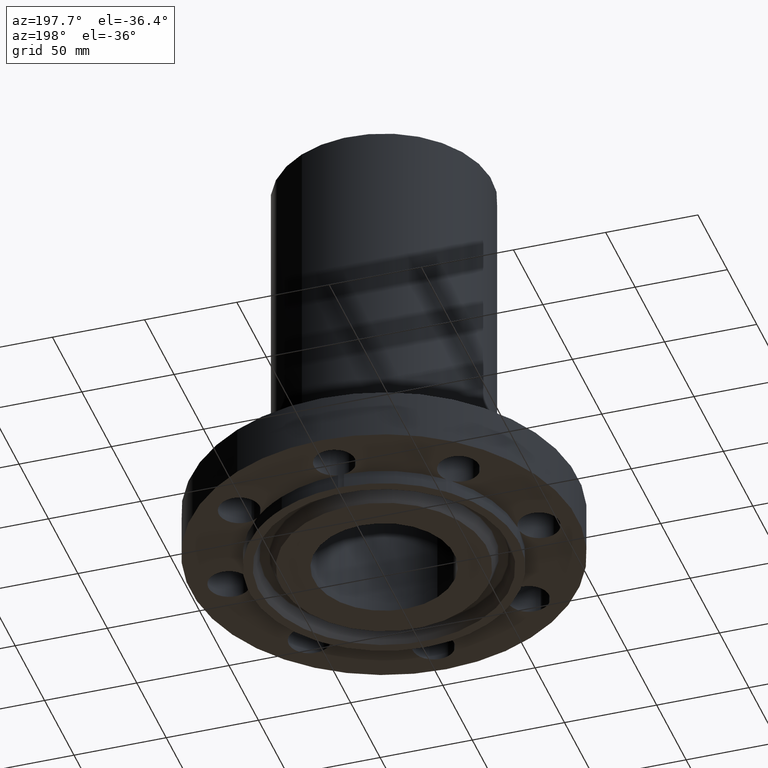
[diagram: clean part render]
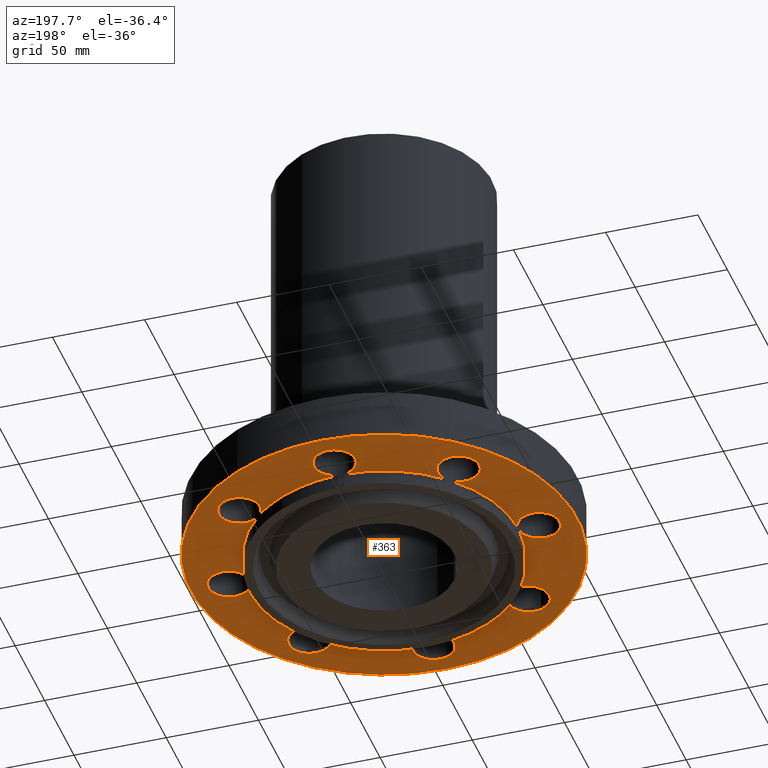
[diagram: same view with one face highlighted and labeled with its STEP entity id]
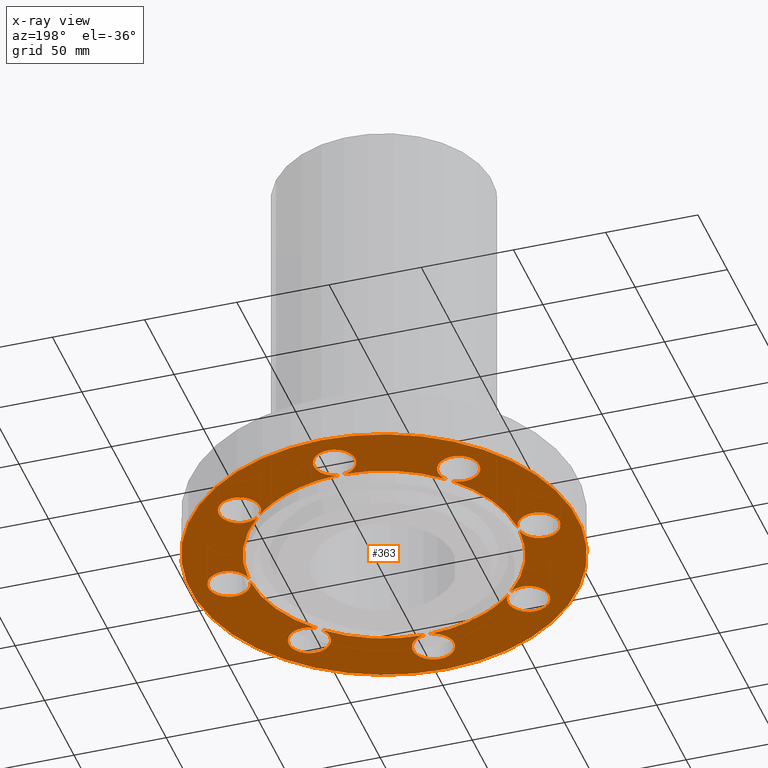
[diagram: x-ray of the same camera — body ghosted, the highlighted face saturated]
A machine part, auxiliary view. The second image highlights one B-rep face of the part: STEP entity #363.
The next image is the same camera in x-ray: the body ghosted, the highlighted face saturated — about 0% of this face is hidden behind the body in this view.
In plain terms, the highlighted planar face has unit normal (0, 0, -1).
Its self-contained STEP definition (entity closure, byte-faithful):
#65=AXIS2_PLACEMENT_3D('Circle Axis2P3D',#63,#64,$) ;
#78=AXIS2_PLACEMENT_3D('Plane Axis2P3D',#75,#76,#77) ;
#82=AXIS2_PLACEMENT_3D('Circle Axis2P3D',#80,#81,$) ;
#91=AXIS2_PLACEMENT_3D('Circle Axis2P3D',#89,#90,$) ;
#100=AXIS2_PLACEMENT_3D('Circle Axis2P3D',#98,#99,$) ;
#109=AXIS2_PLACEMENT_3D('Circle Axis2P3D',#107,#108,$) ;
#116=AXIS2_PLACEMENT_3D('Circle Axis2P3D',#114,#115,$) ;
#123=AXIS2_PLACEMENT_3D('Circle Axis2P3D',#121,#122,$) ;
#130=AXIS2_PLACEMENT_3D('Circle Axis2P3D',#128,#129,$) ;
#137=AXIS2_PLACEMENT_3D('Circle Axis2P3D',#135,#136,$) ;
#144=AXIS2_PLACEMENT_3D('Circle Axis2P3D',#142,#143,$) ;
#151=AXIS2_PLACEMENT_3D('Circle Axis2P3D',#149,#150,$) ;
#158=AXIS2_PLACEMENT_3D('Circle Axis2P3D',#156,#157,$) ;
#165=AXIS2_PLACEMENT_3D('Circle Axis2P3D',#163,#164,$) ;
#172=AXIS2_PLACEMENT_3D('Circle Axis2P3D',#170,#171,$) ;
#177=AXIS2_PLACEMENT_3D('Circle Axis2P3D',#175,#176,$) ;
#184=AXIS2_PLACEMENT_3D('Circle Axis2P3D',#182,#183,$) ;
#191=AXIS2_PLACEMENT_3D('Circle Axis2P3D',#189,#190,$) ;
#198=AXIS2_PLACEMENT_3D('Circle Axis2P3D',#196,#197,$) ;
#205=AXIS2_PLACEMENT_3D('Circle Axis2P3D',#203,#204,$) ;
#212=AXIS2_PLACEMENT_3D('Circle Axis2P3D',#210,#211,$) ;
#219=AXIS2_PLACEMENT_3D('Circle Axis2P3D',#217,#218,$) ;
#226=AXIS2_PLACEMENT_3D('Circle Axis2P3D',#224,#225,$) ;
#233=AXIS2_PLACEMENT_3D('Circle Axis2P3D',#231,#232,$) ;
#240=AXIS2_PLACEMENT_3D('Circle Axis2P3D',#238,#239,$) ;
#247=AXIS2_PLACEMENT_3D('Circle Axis2P3D',#245,#246,$) ;
#254=AXIS2_PLACEMENT_3D('Circle Axis2P3D',#252,#253,$) ;
#261=AXIS2_PLACEMENT_3D('Circle Axis2P3D',#259,#260,$) ;
#268=AXIS2_PLACEMENT_3D('Circle Axis2P3D',#266,#267,$) ;
#275=AXIS2_PLACEMENT_3D('Circle Axis2P3D',#273,#274,$) ;
#282=AXIS2_PLACEMENT_3D('Circle Axis2P3D',#280,#281,$) ;
#289=AXIS2_PLACEMENT_3D('Circle Axis2P3D',#287,#288,$) ;
#296=AXIS2_PLACEMENT_3D('Circle Axis2P3D',#294,#295,$) ;
#303=AXIS2_PLACEMENT_3D('Circle Axis2P3D',#301,#302,$) ;
#310=AXIS2_PLACEMENT_3D('Circle Axis2P3D',#308,#309,$) ;
#317=AXIS2_PLACEMENT_3D('Circle Axis2P3D',#315,#316,$) ;
#324=AXIS2_PLACEMENT_3D('Circle Axis2P3D',#322,#323,$) ;
#46=CARTESIAN_POINT('Vertex',(2.92386367278,-0.210947236987,2.2401153548E-016)) ;
#60=CARTESIAN_POINT('Vertex',(3.69613632725,0.210947236987,2.2401153548E-016)) ;
#63=CARTESIAN_POINT('Axis2P3D Location',(3.31000000001,0.,0.)) ;
#75=CARTESIAN_POINT('Axis2P3D Location',(0.,2.35637906988,0.)) ;
#80=CARTESIAN_POINT('Axis2P3D Location',(0.,0.,0.)) ;
#84=CARTESIAN_POINT('Vertex',(-1.97763034675,-3.62002806781,5.59482469102E-016)) ;
#86=CARTESIAN_POINT('Vertex',(1.97763034675,3.62002806781,5.59482469102E-016)) ;
#89=CARTESIAN_POINT('Axis2P3D Location',(0.,0.,0.)) ;
#98=CARTESIAN_POINT('Axis2P3D Location',(0.,0.,0.)) ;
#102=CARTESIAN_POINT('Vertex',(-1.37834842349,-2.52304986544,5.59482469102E-016)) ;
#104=CARTESIAN_POINT('Vertex',(-1.98887798493,-2.07605138692,5.5620425151E-016)) ;
#107=CARTESIAN_POINT('Axis2P3D Location',(0.,0.,0.)) ;
#111=CARTESIAN_POINT('Vertex',(-0.0616409036851,-2.87433912388,5.5620425151E-016)) ;
#114=CARTESIAN_POINT('Axis2P3D Location',(-1.04902962957E-016,-3.31000000001,0.)) ;
#118=CARTESIAN_POINT('Vertex',(-0.210947236987,-2.92386367278,0.)) ;
#121=CARTESIAN_POINT('Axis2P3D Location',(-3.1470888887E-016,-3.31000000001,0.)) ;
#125=CARTESIAN_POINT('Vertex',(0.210947236987,-3.69613632725,2.2401153548E-016)) ;
#128=CARTESIAN_POINT('Axis2P3D Location',(-1.04902962957E-016,-3.31000000001,0.)) ;
#132=CARTESIAN_POINT('Vertex',(0.0616409036851,-2.87433912388,5.5620425151E-016)) ;
#135=CARTESIAN_POINT('Axis2P3D Location',(0.,0.,0.)) ;
#139=CARTESIAN_POINT('Vertex',(1.98887798493,-2.07605138692,5.5620425151E-016)) ;
#142=CARTESIAN_POINT('Axis2P3D Location',(2.34052344574,-2.34052344574,0.)) ;
#146=CARTESIAN_POINT('Vertex',(1.91832160854,-2.21664605203,0.)) ;
#149=CARTESIAN_POINT('Axis2P3D Location',(2.34052344574,-2.34052344574,0.)) ;
#153=CARTESIAN_POINT('Vertex',(2.76272528293,-2.46440083944,2.2401153548E-016)) ;
#156=CARTESIAN_POINT('Axis2P3D Location',(2.34052344574,-2.34052344574,0.)) ;
#160=CARTESIAN_POINT('Vertex',(2.07605138692,-1.98887798493,5.5620425151E-016)) ;
#163=CARTESIAN_POINT('Axis2P3D Location',(0.,0.,0.)) ;
#167=CARTESIAN_POINT('Vertex',(2.87433912388,-0.0616409036851,5.59482469102E-016)) ;
#170=CARTESIAN_POINT('Axis2P3D Location',(3.31000000001,-2.79741234551E-016,0.)) ;
#175=CARTESIAN_POINT('Axis2P3D Location',(3.31000000001,-2.79741234551E-016,0.)) ;
#179=CARTESIAN_POINT('Vertex',(2.87433912388,0.0616409036851,5.59482469102E-016)) ;
#182=CARTESIAN_POINT('Axis2P3D Location',(0.,0.,0.)) ;
#186=CARTESIAN_POINT('Vertex',(2.07605138692,1.98887798493,5.5620425151E-016)) ;
#189=CARTESIAN_POINT('Axis2P3D Location',(2.34052344574,2.34052344574,0.)) ;
#193=CARTESIAN_POINT('Vertex',(2.21664605203,1.91832160854,0.)) ;
#196=CARTESIAN_POINT('Axis2P3D Location',(2.34052344574,2.34052344574,0.)) ;
#200=CARTESIAN_POINT('Vertex',(2.46440083944,2.76272528293,2.2401153548E-016)) ;
#203=CARTESIAN_POINT('Axis2P3D Location',(2.34052344574,2.34052344574,0.)) ;
#207=CARTESIAN_POINT('Vertex',(1.98887798493,2.07605138692,5.5620425151E-016)) ;
#210=CARTESIAN_POINT('Axis2P3D Location',(0.,0.,0.)) ;
#214=CARTESIAN_POINT('Vertex',(1.37834842349,2.52304986544,5.59482469102E-016)) ;
#217=CARTESIAN_POINT('Axis2P3D Location',(0.,0.,0.)) ;
#221=CARTESIAN_POINT('Vertex',(0.0616409036851,2.87433912388,5.5620425151E-016)) ;
#224=CARTESIAN_POINT('Axis2P3D Location',(-3.84644197508E-016,3.31000000001,0.)) ;
#228=CARTESIAN_POINT('Vertex',(0.210947236987,2.92386367278,0.)) ;
#231=CARTESIAN_POINT('Axis2P3D Location',(-6.64385432059E-016,3.31000000001,0.)) ;
#235=CARTESIAN_POINT('Vertex',(-0.210947236987,3.69613632725,2.2401153548E-016)) ;
#238=CARTESIAN_POINT('Axis2P3D Location',(-3.84644197508E-016,3.31000000001,0.)) ;
#242=CARTESIAN_POINT('Vertex',(-0.0616409036851,2.87433912388,5.5620425151E-016)) ;
#245=CARTESIAN_POINT('Axis2P3D Location',(0.,0.,0.)) ;
#249=CARTESIAN_POINT('Vertex',(-1.98887798493,2.07605138692,5.5620425151E-016)) ;
#252=CARTESIAN_POINT('Axis2P3D Location',(-2.34052344574,2.34052344574,0.)) ;
#256=CARTESIAN_POINT('Vertex',(-1.91832160854,2.21664605203,0.)) ;
#259=CARTESIAN_POINT('Axis2P3D Location',(-2.34052344574,2.34052344574,0.)) ;
#263=CARTESIAN_POINT('Vertex',(-2.76272528293,2.46440083944,2.2401153548E-016)) ;
#266=CARTESIAN_POINT('Axis2P3D Location',(-2.34052344574,2.34052344574,0.)) ;
#270=CARTESIAN_POINT('Vertex',(-2.07605138692,1.98887798493,5.5620425151E-016)) ;
#273=CARTESIAN_POINT('Axis2P3D Location',(0.,0.,0.)) ;
#277=CARTESIAN_POINT('Vertex',(-2.87433912388,0.0616409036851,5.5620425151E-016)) ;
#280=CARTESIAN_POINT('Axis2P3D Location',(-3.31000000001,0.,0.)) ;
#284=CARTESIAN_POINT('Vertex',(-2.92386367278,0.210947236987,0.)) ;
#287=CARTESIAN_POINT('Axis2P3D Location',(-3.31000000001,-2.79741234551E-016,0.)) ;
#291=CARTESIAN_POINT('Vertex',(-3.69613632725,-0.210947236987,2.2401153548E-016)) ;
#294=CARTESIAN_POINT('Axis2P3D Location',(-3.31000000001,0.,0.)) ;
#298=CARTESIAN_POINT('Vertex',(-2.87433912388,-0.0616409036851,5.5620425151E-016)) ;
#301=CARTESIAN_POINT('Axis2P3D Location',(0.,0.,0.)) ;
#305=CARTESIAN_POINT('Vertex',(-2.07605138692,-1.98887798493,5.5620425151E-016)) ;
#308=CARTESIAN_POINT('Axis2P3D Location',(-2.34052344574,-2.34052344574,0.)) ;
#312=CARTESIAN_POINT('Vertex',(-2.21664605203,-1.91832160854,0.)) ;
#315=CARTESIAN_POINT('Axis2P3D Location',(-2.34052344574,-2.34052344574,0.)) ;
#319=CARTESIAN_POINT('Vertex',(-2.46440083944,-2.76272528293,2.2401153548E-016)) ;
#322=CARTESIAN_POINT('Axis2P3D Location',(-2.34052344574,-2.34052344574,0.)) ;
#64=DIRECTION('Axis2P3D Direction',(0.,-0.,0.0393700787402)) ;
#76=DIRECTION('Axis2P3D Direction',(0.,0.,-0.0393700787402)) ;
#77=DIRECTION('Axis2P3D XDirection',(0.0393700787402,0.,0.)) ;
#81=DIRECTION('Axis2P3D Direction',(0.,0.,-0.0393700787402)) ;
#90=DIRECTION('Axis2P3D Direction',(0.,0.,-0.0393700787402)) ;
#99=DIRECTION('Axis2P3D Direction',(0.,0.,-0.0393700787402)) ;
#108=DIRECTION('Axis2P3D Direction',(0.,0.,-0.0393700787402)) ;
#115=DIRECTION('Axis2P3D Direction',(0.,0.,-0.0393700787402)) ;
#122=DIRECTION('Axis2P3D Direction',(0.,0.,-0.0393700787402)) ;
#129=DIRECTION('Axis2P3D Direction',(0.,0.,-0.0393700787402)) ;
#136=DIRECTION('Axis2P3D Direction',(0.,0.,-0.0393700787402)) ;
#143=DIRECTION('Axis2P3D Direction',(0.,0.,-0.0393700787402)) ;
#150=DIRECTION('Axis2P3D Direction',(0.,0.,-0.0393700787402)) ;
#157=DIRECTION('Axis2P3D Direction',(0.,0.,-0.0393700787402)) ;
#164=DIRECTION('Axis2P3D Direction',(0.,0.,-0.0393700787402)) ;
#171=DIRECTION('Axis2P3D Direction',(0.,0.,-0.0393700787402)) ;
#176=DIRECTION('Axis2P3D Direction',(0.,0.,-0.0393700787402)) ;
#183=DIRECTION('Axis2P3D Direction',(0.,0.,-0.0393700787402)) ;
#190=DIRECTION('Axis2P3D Direction',(0.,0.,-0.0393700787402)) ;
#197=DIRECTION('Axis2P3D Direction',(0.,0.,-0.0393700787402)) ;
#204=DIRECTION('Axis2P3D Direction',(0.,0.,-0.0393700787402)) ;
#211=DIRECTION('Axis2P3D Direction',(0.,0.,-0.0393700787402)) ;
#218=DIRECTION('Axis2P3D Direction',(0.,0.,-0.0393700787402)) ;
#225=DIRECTION('Axis2P3D Direction',(0.,0.,-0.0393700787402)) ;
#232=DIRECTION('Axis2P3D Direction',(0.,0.,-0.0393700787402)) ;
#239=DIRECTION('Axis2P3D Direction',(0.,0.,-0.0393700787402)) ;
#246=DIRECTION('Axis2P3D Direction',(0.,0.,-0.0393700787402)) ;
#253=DIRECTION('Axis2P3D Direction',(0.,0.,-0.0393700787402)) ;
#260=DIRECTION('Axis2P3D Direction',(0.,0.,-0.0393700787402)) ;
#267=DIRECTION('Axis2P3D Direction',(0.,0.,-0.0393700787402)) ;
#274=DIRECTION('Axis2P3D Direction',(0.,0.,-0.0393700787402)) ;
#281=DIRECTION('Axis2P3D Direction',(0.,0.,-0.0393700787402)) ;
#288=DIRECTION('Axis2P3D Direction',(0.,0.,-0.0393700787402)) ;
#295=DIRECTION('Axis2P3D Direction',(0.,0.,-0.0393700787402)) ;
#302=DIRECTION('Axis2P3D Direction',(0.,0.,-0.0393700787402)) ;
#309=DIRECTION('Axis2P3D Direction',(0.,0.,-0.0393700787402)) ;
#316=DIRECTION('Axis2P3D Direction',(0.,0.,-0.0393700787402)) ;
#323=DIRECTION('Axis2P3D Direction',(0.,0.,-0.0393700787402)) ;
#95=ORIENTED_EDGE('',*,*,#88,.T.) ;
#96=ORIENTED_EDGE('',*,*,#93,.T.) ;
#328=ORIENTED_EDGE('',*,*,#106,.F.) ;
#329=ORIENTED_EDGE('',*,*,#113,.F.) ;
#330=ORIENTED_EDGE('',*,*,#120,.F.) ;
#331=ORIENTED_EDGE('',*,*,#127,.F.) ;
#332=ORIENTED_EDGE('',*,*,#134,.F.) ;
#333=ORIENTED_EDGE('',*,*,#141,.F.) ;
#334=ORIENTED_EDGE('',*,*,#148,.F.) ;
#335=ORIENTED_EDGE('',*,*,#155,.F.) ;
#336=ORIENTED_EDGE('',*,*,#162,.F.) ;
#337=ORIENTED_EDGE('',*,*,#169,.F.) ;
#338=ORIENTED_EDGE('',*,*,#174,.F.) ;
#339=ORIENTED_EDGE('',*,*,#67,.F.) ;
#340=ORIENTED_EDGE('',*,*,#181,.F.) ;
#341=ORIENTED_EDGE('',*,*,#188,.F.) ;
#342=ORIENTED_EDGE('',*,*,#195,.F.) ;
#343=ORIENTED_EDGE('',*,*,#202,.F.) ;
#344=ORIENTED_EDGE('',*,*,#209,.F.) ;
#345=ORIENTED_EDGE('',*,*,#216,.F.) ;
#346=ORIENTED_EDGE('',*,*,#223,.F.) ;
#347=ORIENTED_EDGE('',*,*,#230,.F.) ;
#348=ORIENTED_EDGE('',*,*,#237,.F.) ;
#349=ORIENTED_EDGE('',*,*,#244,.F.) ;
#350=ORIENTED_EDGE('',*,*,#251,.F.) ;
#351=ORIENTED_EDGE('',*,*,#258,.F.) ;
#352=ORIENTED_EDGE('',*,*,#265,.F.) ;
#353=ORIENTED_EDGE('',*,*,#272,.F.) ;
#354=ORIENTED_EDGE('',*,*,#279,.F.) ;
#355=ORIENTED_EDGE('',*,*,#286,.F.) ;
#356=ORIENTED_EDGE('',*,*,#293,.F.) ;
#357=ORIENTED_EDGE('',*,*,#300,.F.) ;
#358=ORIENTED_EDGE('',*,*,#307,.F.) ;
#359=ORIENTED_EDGE('',*,*,#314,.F.) ;
#360=ORIENTED_EDGE('',*,*,#321,.F.) ;
#361=ORIENTED_EDGE('',*,*,#326,.F.) ;
#362=FACE_BOUND('',#327,.T.) ;
#363=ADVANCED_FACE('PartBody',(#97,#362),#79,.T.) ;
#66=CIRCLE('generated circle',#65,0.440000000002) ;
#83=CIRCLE('generated circle',#82,4.12500000002) ;
#92=CIRCLE('generated circle',#91,4.12500000002) ;
#101=CIRCLE('generated circle',#100,2.87500000001) ;
#110=CIRCLE('generated circle',#109,2.87500000001) ;
#117=CIRCLE('generated circle',#116,0.440000000002) ;
#124=CIRCLE('generated circle',#123,0.440000000002) ;
#131=CIRCLE('generated circle',#130,0.440000000002) ;
#138=CIRCLE('generated circle',#137,2.87500000001) ;
#145=CIRCLE('generated circle',#144,0.440000000002) ;
#152=CIRCLE('generated circle',#151,0.440000000002) ;
#159=CIRCLE('generated circle',#158,0.440000000002) ;
#166=CIRCLE('generated circle',#165,2.87500000001) ;
#173=CIRCLE('generated circle',#172,0.440000000002) ;
#178=CIRCLE('generated circle',#177,0.440000000002) ;
#185=CIRCLE('generated circle',#184,2.87500000001) ;
#192=CIRCLE('generated circle',#191,0.440000000002) ;
#199=CIRCLE('generated circle',#198,0.440000000002) ;
#206=CIRCLE('generated circle',#205,0.440000000002) ;
#213=CIRCLE('generated circle',#212,2.87500000001) ;
#220=CIRCLE('generated circle',#219,2.87500000001) ;
#227=CIRCLE('generated circle',#226,0.440000000002) ;
#234=CIRCLE('generated circle',#233,0.440000000002) ;
#241=CIRCLE('generated circle',#240,0.440000000002) ;
#248=CIRCLE('generated circle',#247,2.87500000001) ;
#255=CIRCLE('generated circle',#254,0.440000000002) ;
#262=CIRCLE('generated circle',#261,0.440000000002) ;
#269=CIRCLE('generated circle',#268,0.440000000002) ;
#276=CIRCLE('generated circle',#275,2.87500000001) ;
#283=CIRCLE('generated circle',#282,0.440000000002) ;
#290=CIRCLE('generated circle',#289,0.440000000002) ;
#297=CIRCLE('generated circle',#296,0.440000000002) ;
#304=CIRCLE('generated circle',#303,2.87500000001) ;
#311=CIRCLE('generated circle',#310,0.440000000002) ;
#318=CIRCLE('generated circle',#317,0.440000000002) ;
#325=CIRCLE('generated circle',#324,0.440000000002) ;
#67=EDGE_CURVE('',#61,#47,#66,.F.) ;
#88=EDGE_CURVE('',#85,#87,#83,.T.) ;
#93=EDGE_CURVE('',#87,#85,#92,.T.) ;
#106=EDGE_CURVE('',#103,#105,#101,.T.) ;
#113=EDGE_CURVE('',#112,#103,#110,.T.) ;
#120=EDGE_CURVE('',#119,#112,#117,.T.) ;
#127=EDGE_CURVE('',#126,#119,#124,.T.) ;
#134=EDGE_CURVE('',#133,#126,#131,.T.) ;
#141=EDGE_CURVE('',#140,#133,#138,.T.) ;
#148=EDGE_CURVE('',#147,#140,#145,.T.) ;
#155=EDGE_CURVE('',#154,#147,#152,.T.) ;
#162=EDGE_CURVE('',#161,#154,#159,.T.) ;
#169=EDGE_CURVE('',#168,#161,#166,.T.) ;
#174=EDGE_CURVE('',#47,#168,#173,.T.) ;
#181=EDGE_CURVE('',#180,#61,#178,.T.) ;
#188=EDGE_CURVE('',#187,#180,#185,.T.) ;
#195=EDGE_CURVE('',#194,#187,#192,.T.) ;
#202=EDGE_CURVE('',#201,#194,#199,.T.) ;
#209=EDGE_CURVE('',#208,#201,#206,.T.) ;
#216=EDGE_CURVE('',#215,#208,#213,.T.) ;
#223=EDGE_CURVE('',#222,#215,#220,.T.) ;
#230=EDGE_CURVE('',#229,#222,#227,.T.) ;
#237=EDGE_CURVE('',#236,#229,#234,.T.) ;
#244=EDGE_CURVE('',#243,#236,#241,.T.) ;
#251=EDGE_CURVE('',#250,#243,#248,.T.) ;
#258=EDGE_CURVE('',#257,#250,#255,.T.) ;
#265=EDGE_CURVE('',#264,#257,#262,.T.) ;
#272=EDGE_CURVE('',#271,#264,#269,.T.) ;
#279=EDGE_CURVE('',#278,#271,#276,.T.) ;
#286=EDGE_CURVE('',#285,#278,#283,.T.) ;
#293=EDGE_CURVE('',#292,#285,#290,.T.) ;
#300=EDGE_CURVE('',#299,#292,#297,.T.) ;
#307=EDGE_CURVE('',#306,#299,#304,.T.) ;
#314=EDGE_CURVE('',#313,#306,#311,.T.) ;
#321=EDGE_CURVE('',#320,#313,#318,.T.) ;
#326=EDGE_CURVE('',#105,#320,#325,.T.) ;
#94=EDGE_LOOP('',(#95,#96)) ;
#327=EDGE_LOOP('',(#328,#329,#330,#331,#332,#333,#334,#335,#336,#337,#338,#339,#340,#341,#342,#343,#344,#345,#346,#347,#348,#349,#350,#351,#352,#353,#354,#355,#356,#357,#358,#359,#360,#361)) ;
#97=FACE_OUTER_BOUND('',#94,.T.) ;
#79=PLANE('',#78) ;
#47=VERTEX_POINT('',#46) ;
#61=VERTEX_POINT('',#60) ;
#85=VERTEX_POINT('',#84) ;
#87=VERTEX_POINT('',#86) ;
#103=VERTEX_POINT('',#102) ;
#105=VERTEX_POINT('',#104) ;
#112=VERTEX_POINT('',#111) ;
#119=VERTEX_POINT('',#118) ;
#126=VERTEX_POINT('',#125) ;
#133=VERTEX_POINT('',#132) ;
#140=VERTEX_POINT('',#139) ;
#147=VERTEX_POINT('',#146) ;
#154=VERTEX_POINT('',#153) ;
#161=VERTEX_POINT('',#160) ;
#168=VERTEX_POINT('',#167) ;
#180=VERTEX_POINT('',#179) ;
#187=VERTEX_POINT('',#186) ;
#194=VERTEX_POINT('',#193) ;
#201=VERTEX_POINT('',#200) ;
#208=VERTEX_POINT('',#207) ;
#215=VERTEX_POINT('',#214) ;
#222=VERTEX_POINT('',#221) ;
#229=VERTEX_POINT('',#228) ;
#236=VERTEX_POINT('',#235) ;
#243=VERTEX_POINT('',#242) ;
#250=VERTEX_POINT('',#249) ;
#257=VERTEX_POINT('',#256) ;
#264=VERTEX_POINT('',#263) ;
#271=VERTEX_POINT('',#270) ;
#278=VERTEX_POINT('',#277) ;
#285=VERTEX_POINT('',#284) ;
#292=VERTEX_POINT('',#291) ;
#299=VERTEX_POINT('',#298) ;
#306=VERTEX_POINT('',#305) ;
#313=VERTEX_POINT('',#312) ;
#320=VERTEX_POINT('',#319) ;